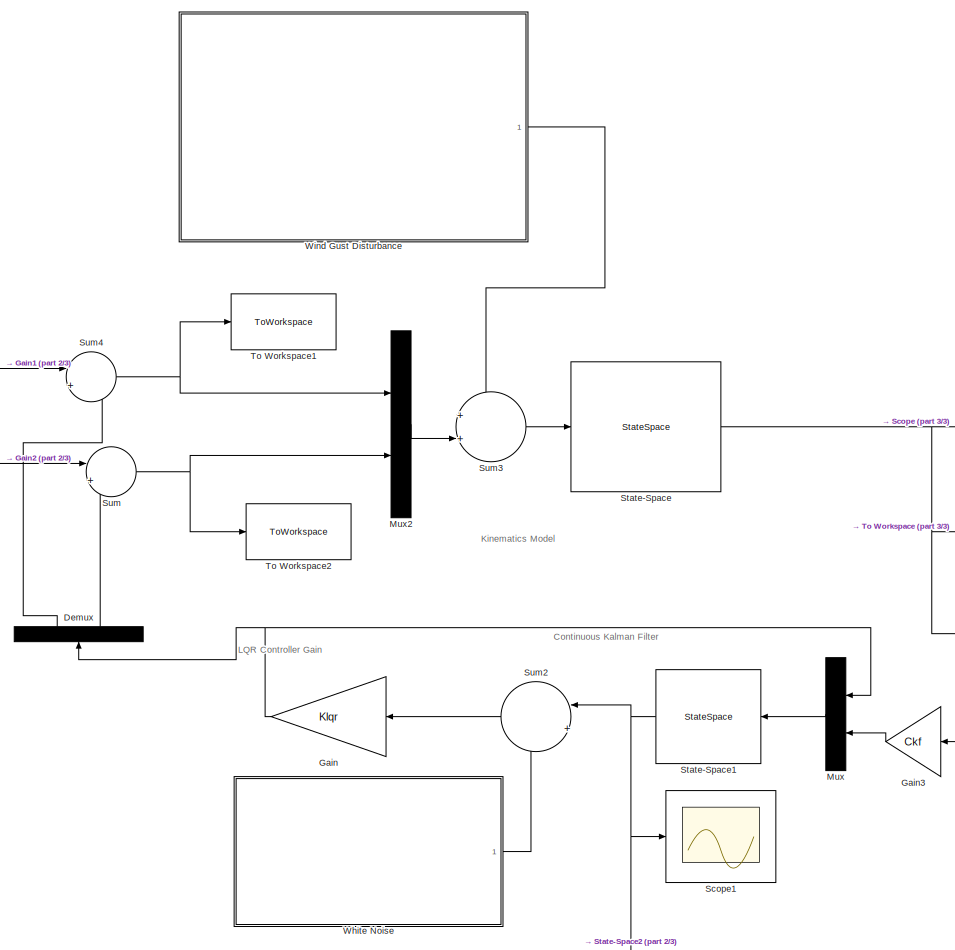
[diagram: root canvas - part 1/3, center side, full height]
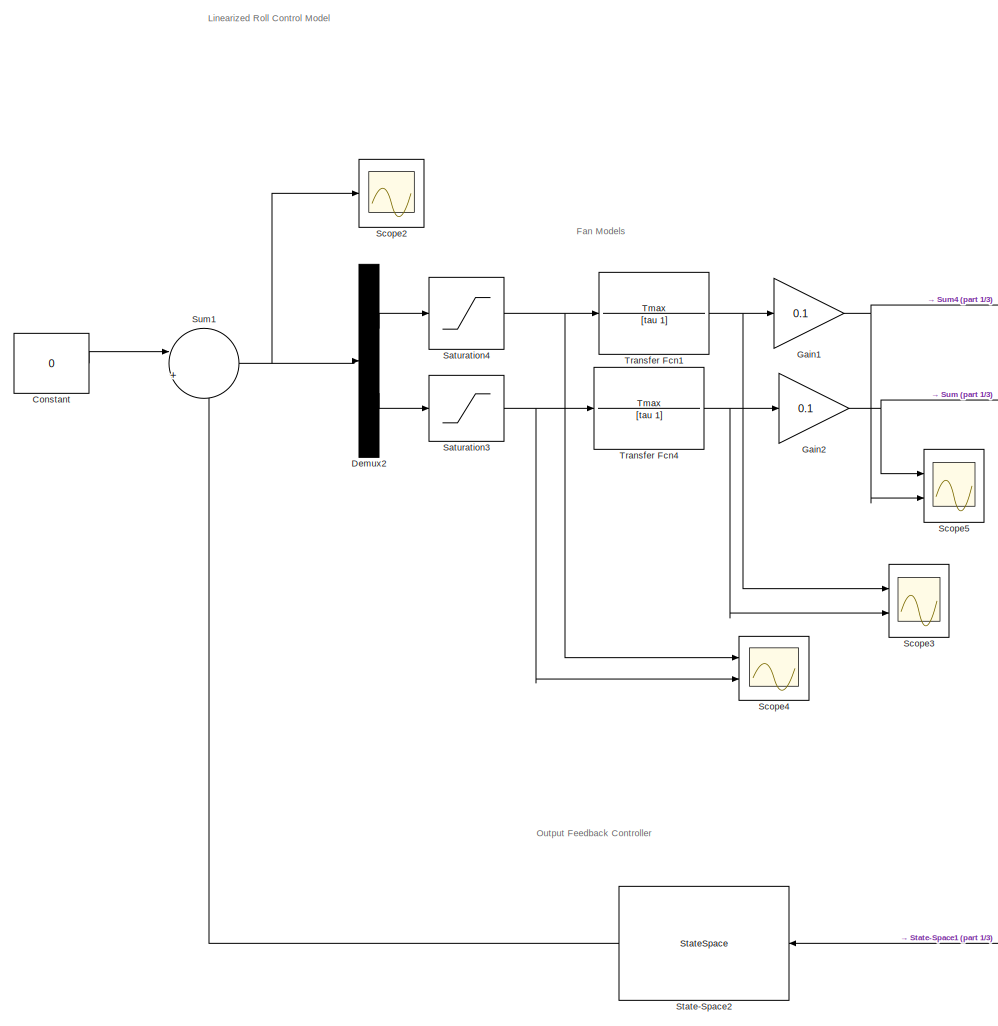
[diagram: root canvas - part 2/3, left side, full height]
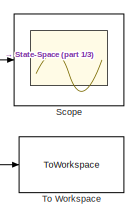
[diagram: root canvas - part 3/3, middle right region]
MODEL slx_354a593ea99e
KIND model
CONFIG AbsTol = auto
CONFIG EnableMultiTasking = off
CONFIG FixedStep = auto
CONFIG MaxStep = auto
CONFIG MinStep = auto
CONFIG RelTol = 1e-3
CONFIG SampleTimeConstraint = Unconstrained
CONFIG SolverName = VariableStepAuto
CONFIG StartTime = 0.0
CONFIG StopTime = 30
BLOCK [Constant] Constant
  Value = 0
BLOCK [Demux] Demux
  NameLocation = right
  Outputs = 2
  Ports = [1, 2]
BLOCK [Demux] Demux2
  Outputs = 2
  Ports = [1, 2]
BLOCK [Gain] Gain
  Gain = Klqr
  Multiplication = Matrix(K*u)
BLOCK [Gain] Gain1
  Gain = 0.1
BLOCK [Gain] Gain2
  Gain = 0.1
BLOCK [Gain] Gain3
  Gain = Ckf
  Multiplication = Matrix(K*u)
BLOCK [Mux] Mux
  DisplayOption = bar
  Inputs = 2
  Ports = [2, 1]
BLOCK [Mux] Mux2
  DisplayOption = bar
  Inputs = 2
  Ports = [2, 1]
BLOCK [Saturate] Saturation3
  LowerLimit = 0
  UpperLimit = 1
BLOCK [Saturate] Saturation4
  LowerLimit = 0
  UpperLimit = 1
BLOCK [Scope] Scope
  Floating = off
  NumInputPorts = 1
  Ports = [1]
  ScopeSpecificationString = Simulink.scopes.TimeScopeBlockCfg('CurrentConfiguration', extmgr.ConfigurationSet(extmgr.Configuration('Core','General UI',true),extmgr.Configuration('Core','Source UI',true),extmgr.Configuration('Sources','WiredSimulink',true),extmgr.Configuration('Visuals','Time Domain',true,'SerializedDisplays',{struct('MinYLimReal','-0.69198','MaxYLimReal','0.71231','YLabelReal','','MinYLimMag','0.00000','MaxY...<+1482ch>
BLOCK [Scope] Scope1
  Floating = off
  NumInputPorts = 1
  Ports = [1]
  ScopeSpecificationString = Simulink.scopes.TimeScopeBlockCfg('CurrentConfiguration', extmgr.ConfigurationSet(extmgr.Configuration('Core','General UI',true),extmgr.Configuration('Core','Source UI',true),extmgr.Configuration('Sources','WiredSimulink',true,'DataLoggingVariableName','ScopeData1'),extmgr.Configuration('Visuals','Time Domain',true,'SerializedDisplays',{struct('MinYLimReal','-0.64536','MaxYLimReal','0.26331','YLab...<+1483ch>
BLOCK [Scope] Scope2
  Floating = off
  NumInputPorts = 1
  Ports = [1]
  ScopeSpecificationString = Simulink.scopes.TimeScopeBlockCfg('CurrentConfiguration', extmgr.ConfigurationSet(extmgr.Configuration('Core','General UI',true),extmgr.Configuration('Core','Source UI',true),extmgr.Configuration('Sources','WiredSimulink',true,'DataLoggingVariableName','ScopeData2'),extmgr.Configuration('Visuals','Time Domain',true,'SerializedDisplays',{struct('MinYLimReal','-14951302393093123315684963898104774303...<+3889ch>
BLOCK [Scope] Scope3
  Floating = off
  NumInputPorts = 2
  Ports = [2]
  ScopeSpecificationString = Simulink.scopes.TimeScopeBlockCfg('CurrentConfiguration', extmgr.ConfigurationSet(extmgr.Configuration('Core','General UI',true),extmgr.Configuration('Core','Source UI',true),extmgr.Configuration('Sources','WiredSimulink',true,'DataLoggingVariableName','ScopeData3'),extmgr.Configuration('Visuals','Time Domain',true,'SerializedDisplays',{struct('MinYLimReal','-51187.5','MaxYLimReal','5687.5','YLabe...<+1417ch>
BLOCK [Scope] Scope4
  Floating = off
  NumInputPorts = 2
  Ports = [2]
  ScopeSpecificationString = Simulink.scopes.TimeScopeBlockCfg('CurrentConfiguration', extmgr.ConfigurationSet(extmgr.Configuration('Core','General UI',true),extmgr.Configuration('Core','Source UI',true),extmgr.Configuration('Sources','WiredSimulink',true,'DataLoggingVariableName','ScopeData4'),extmgr.Configuration('Visuals','Time Domain',true,'SerializedDisplays',{struct('MinYLimReal','-2.34949','MaxYLimReal','-0.07137','YLa...<+1455ch>
BLOCK [Scope] Scope5
  Floating = off
  NumInputPorts = 2
  Ports = [2]
  ScopeSpecificationString = Simulink.scopes.TimeScopeBlockCfg('CurrentConfiguration', extmgr.ConfigurationSet(extmgr.Configuration('Core','General UI',true),extmgr.Configuration('Core','Source UI',true),extmgr.Configuration('Sources','WiredSimulink',true,'DataLoggingVariableName','ScopeData5'),extmgr.Configuration('Visuals','Time Domain',true,'SerializedDisplays',{struct('MinYLimReal','-365.07062','MaxYLimReal','3285.63557',...<+1434ch>
BLOCK [StateSpace] State-Space
  A = sys.A
  B = sys.B
  C = sys.C
  D = sys.D
  InitialCondition = 0
  Ports = [1, 1]
BLOCK [StateSpace] State-Space1
  A = sysKF.A
  B = sysKF.B
  C = sysKF.C
  D = sysKF.D
  InitialCondition = 0
  Ports = [1, 1]
BLOCK [StateSpace] State-Space2
  A = sys_reg.A
  B = sys_reg.B
  C = sys_reg.C
  D = sys_reg.D
  InitialCondition = 0
  Ports = [1, 1]
BLOCK [Sum] Sum
  Inputs = |+-
  Ports = [2, 1]
BLOCK [Sum] Sum1
  Inputs = |+-
  Ports = [2, 1]
BLOCK [Sum] Sum2
  Inputs = |++
  Ports = [2, 1]
BLOCK [Sum] Sum3
  Inputs = ++|
  Ports = [2, 1]
BLOCK [Sum] Sum4
  Inputs = |+-
  Ports = [2, 1]
BLOCK [ToWorkspace] To Workspace
  FixptAsFi = on
  MaxDataPoints = inf
  Ports = [1]
  SampleTime = -1
  SaveFormat = Structure With Time
  VariableName = xstates
BLOCK [ToWorkspace] To Workspace1
  FixptAsFi = on
  MaxDataPoints = inf
  Ports = [1]
  SampleTime = -1
  SaveFormat = Structure With Time
  VariableName = Fleft
BLOCK [ToWorkspace] To Workspace2
  FixptAsFi = on
  MaxDataPoints = inf
  Ports = [1]
  SampleTime = -1
  SaveFormat = Structure With Time
  VariableName = Fright
BLOCK [TransferFcn] Transfer Fcn1
  Denominator = [tau 1]
  Numerator = Tmax
BLOCK [TransferFcn] Transfer Fcn4
  Denominator = [tau 1]
  Numerator = Tmax
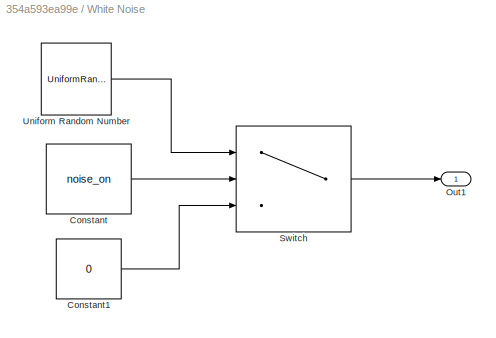
BLOCK [SubSystem] White Noise
  Ports = [0, 1]
  RequestExecContextInheritance = off
BLOCK [Constant] White Noise/Constant
  Value = noise_on
BLOCK [Constant] White Noise/Constant1
  Value = 0
BLOCK [Outport] White Noise/Out1
BLOCK [Switch] White Noise/Switch
  Criteria = u2 > Threshold
  InputSameDT = off
  SaturateOnIntegerOverflow = off
BLOCK [UniformRandomNumber] White Noise/Uniform Random Number
  Maximum = 0.1
  Minimum = -0.1
  SampleTime = 0.1
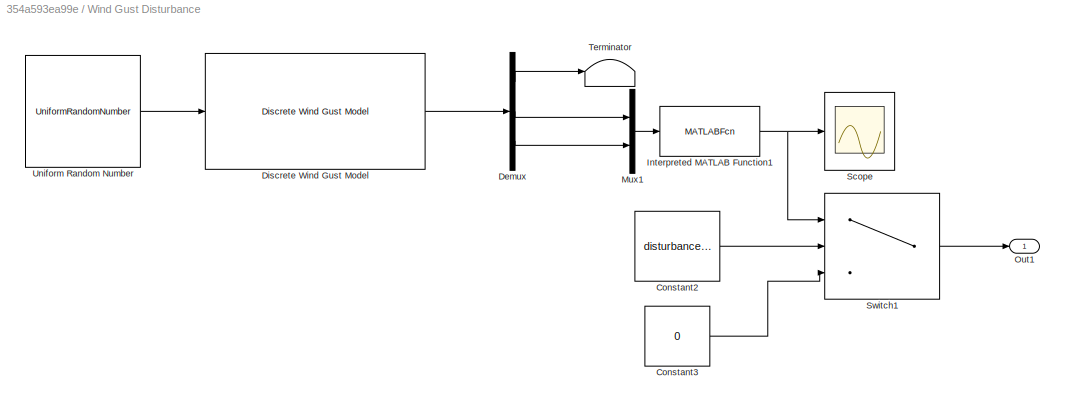
BLOCK [SubSystem] Wind Gust Disturbance
  Ports = [0, 1]
  RequestExecContextInheritance = off
BLOCK [Constant] Wind Gust Disturbance/Constant2
  Value = disturbance_on
BLOCK [Constant] Wind Gust Disturbance/Constant3
  Value = 0
BLOCK [Demux] Wind Gust Disturbance/Demux
  Outputs = 3
  Ports = [1, 3]
BLOCK [Reference] Wind Gust Disturbance/Discrete Wind Gust Model  REF=aerolibwind2/Discrete Wind Gust Model
  Ports = [1, 1]
  SourceBlock = aerolibwind2/Discrete Wind Gust Model
  SourceProductBaseCode = AE
  SourceType = Discrete Wind Gust Model
BLOCK [MATLABFcn] Wind Gust Disturbance/Interpreted MATLAB Function1
  MATLABFcn = sqrt(u(1)^2 + u(2)^2)
  Ports = [1, 1]
BLOCK [Mux] Wind Gust Disturbance/Mux1
  DisplayOption = bar
  Inputs = 2
  Ports = [2, 1]
BLOCK [Outport] Wind Gust Disturbance/Out1
BLOCK [Scope] Wind Gust Disturbance/Scope
  Floating = off
  NumInputPorts = 1
  Ports = [1]
  ScopeSpecificationString = Simulink.scopes.TimeScopeBlockCfg('CurrentConfiguration', extmgr.ConfigurationSet(extmgr.Configuration('Core','General UI',true),extmgr.Configuration('Core','Source UI',true),extmgr.Configuration('Sources','WiredSimulink',true),extmgr.Configuration('Visuals','Time Domain',true,'SerializedDisplays',{struct('MinYLimReal','-1.76568','MaxYLimReal','15.89111','YLabelReal','','MinYLimMag','0.00000','Max...<+1379ch>
BLOCK [Switch] Wind Gust Disturbance/Switch1
  Criteria = u2 > Threshold
  InputSameDT = off
  SaturateOnIntegerOverflow = off
BLOCK [Terminator] Wind Gust Disturbance/Terminator
BLOCK [UniformRandomNumber] Wind Gust Disturbance/Uniform Random Number
  Maximum = Vwind_ul
  Minimum = Vwind_ll
  SampleTime = 0.65
  Seed = 1
ANNOTATION (root): Continuous Kalman Filter
ANNOTATION (root): LQR Controller Gain
ANNOTATION (root): Fan Models
ANNOTATION (root): Output Feedback Controller
ANNOTATION (root): Linearized Roll Control Model
ANNOTATION (root): Kinematics Model
LINE Constant:1 -> Sum1:1
LINE Demux2:1 -> Saturation4:1
LINE Demux2:2 -> Saturation3:1
LINE Demux:1 -> Sum4:2
LINE Demux:2 -> Sum:2
NET Gain1:1 -> Scope5:2, Sum4:1
NET Gain2:1 -> Scope5:1, Sum:1
LINE Gain3:1 -> Mux:2
NET Gain:1 -> Demux:1, Mux:1
LINE Mux2:1 -> Sum3:2
LINE Mux:1 -> State-Space1:1
NET Saturation3:1 -> Scope4:2, Transfer Fcn4:1
NET Saturation4:1 -> Scope4:1, Transfer Fcn1:1
NET State-Space1:1 -> Scope1:1, State-Space2:1, Sum2:1
LINE State-Space2:1 -> Sum1:2
NET State-Space:1 -> Gain3:1, Scope:1, To Workspace:1
NET Sum1:1 -> Demux2:1, Scope2:1
LINE Sum2:1 -> Gain:1
LINE Sum3:1 -> State-Space:1
NET Sum4:1 -> Mux2:1, To Workspace1:1
NET Sum:1 -> Mux2:2, To Workspace2:1
NET Transfer Fcn1:1 -> Gain1:1, Scope3:1
NET Transfer Fcn4:1 -> Gain2:1, Scope3:2
LINE White Noise/Constant1:1 -> White Noise/Switch:3
LINE White Noise/Constant:1 -> White Noise/Switch:2
LINE White Noise/Switch:1 -> White Noise/Out1:1
LINE White Noise/Uniform Random Number:1 -> White Noise/Switch:1
LINE White Noise:1 -> Sum2:2
LINE Wind Gust Disturbance/Constant2:1 -> Wind Gust Disturbance/Switch1:2
LINE Wind Gust Disturbance/Constant3:1 -> Wind Gust Disturbance/Switch1:3
LINE Wind Gust Disturbance/Demux:1 -> Wind Gust Disturbance/Terminator:1
LINE Wind Gust Disturbance/Demux:2 -> Wind Gust Disturbance/Mux1:1
LINE Wind Gust Disturbance/Demux:3 -> Wind Gust Disturbance/Mux1:2
LINE Wind Gust Disturbance/Discrete Wind Gust Model:1 -> Wind Gust Disturbance/Demux:1
NET Wind Gust Disturbance/Interpreted MATLAB Function1:1 -> Wind Gust Disturbance/Scope:1, Wind Gust Disturbance/Switch1:1
LINE Wind Gust Disturbance/Mux1:1 -> Wind Gust Disturbance/Interpreted MATLAB Function1:1
LINE Wind Gust Disturbance/Switch1:1 -> Wind Gust Disturbance/Out1:1
LINE Wind Gust Disturbance/Uniform Random Number:1 -> Wind Gust Disturbance/Discrete Wind Gust Model:1
LINE Wind Gust Disturbance:1 -> Sum3:1
note: NET lines group one-source signal fan-out (src -> all destinations, sorted); 1:1 wires keep LINE
